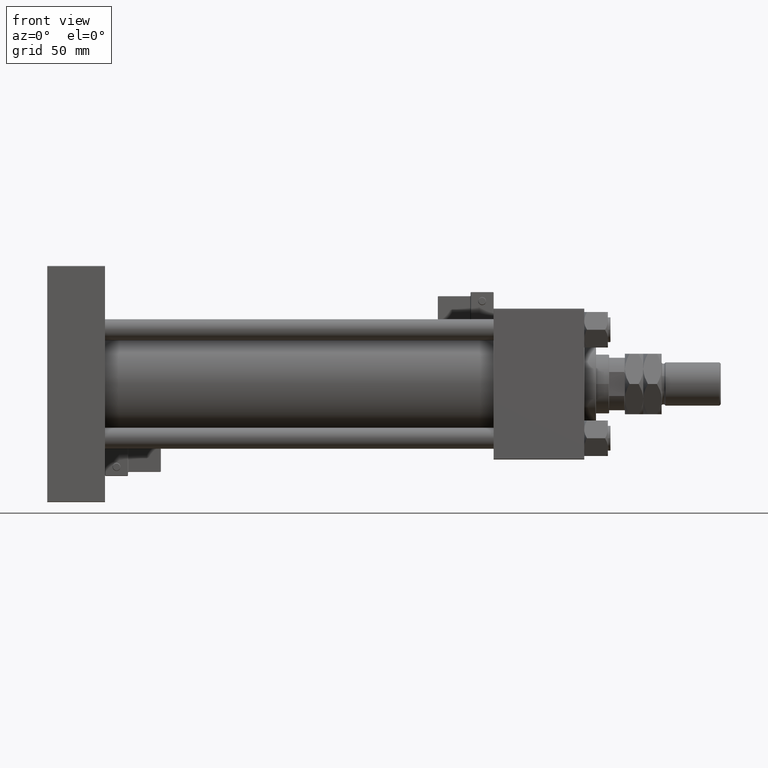
[diagram: clean part render]
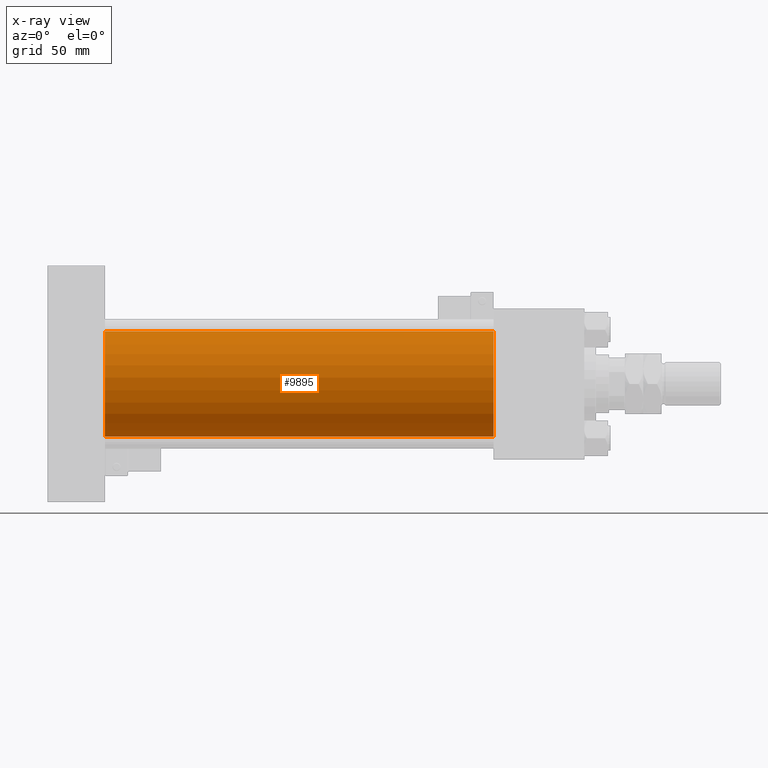
[diagram: x-ray — body ghosted, one internal face saturated and labeled with its STEP entity id]
A machine part, front view, then the same camera in x-ray: the body is ghosted and one INTERNAL B-rep face — a face not visible from any outside direction — is saturated and labeled: STEP entity #9895.
In plain terms, the highlighted cylindrical surface (partial cylindrical patch) has radius 40 mm, axis along (-1, -0, -0).
Its self-contained STEP definition (entity closure, byte-faithful):
#757 = CARTESIAN_POINT ( 'NONE',  ( 339.9999999999999432, -2.602085213965210642E-15, 0.000000000000000000 ) ) ;
#4086 = VERTEX_POINT ( 'NONE', #41383 ) ;
#4304 = DIRECTION ( 'NONE',  ( -1.000000000000000000, -0.000000000000000000, -0.000000000000000000 ) ) ;
#4971 = DIRECTION ( 'NONE',  ( 1.000000000000000000, 0.000000000000000000, 0.000000000000000000 ) ) ;
#5971 = DIRECTION ( 'NONE',  ( 0.000000000000000000, 0.000000000000000000, 1.000000000000000000 ) ) ;
#6613 = EDGE_LOOP ( 'NONE', ( #45920, #20708, #29845, #54898 ) ) ;
#9226 = AXIS2_PLACEMENT_3D ( 'NONE', #43740, #4971, #44307 ) ;
#9422 = LINE ( 'NONE', #26815, #50400 ) ;
#9607 = DIRECTION ( 'NONE',  ( 1.000000000000000000, 0.000000000000000000, 0.000000000000000000 ) ) ;
#9895 = ADVANCED_FACE ( 'NONE', ( #15389 ), #10240, .F. ) ;
#10240 = CYLINDRICAL_SURFACE ( 'NONE', #46111, 40.00000000000000000 ) ;
#15389 = FACE_OUTER_BOUND ( 'NONE', #6613, .T. ) ;
#16740 = VERTEX_POINT ( 'NONE', #22996 ) ;
#17141 = EDGE_CURVE ( 'NONE', #36138, #4086, #52932, .T. ) ;
#20708 = ORIENTED_EDGE ( 'NONE', *, *, #40480, .T. ) ;
#21512 = EDGE_CURVE ( 'NONE', #34084, #36138, #9422, .T. ) ;
#22996 = CARTESIAN_POINT ( 'NONE',  ( 339.9999999999999432, 2.296501982624201990E-15, -40.00000000000000000 ) ) ;
#25948 = CIRCLE ( 'NONE', #35960, 40.00000000000000000 ) ;
#26815 = CARTESIAN_POINT ( 'NONE',  ( 339.9999999999999432, -2.602085213965210642E-15, 40.00000000000000000 ) ) ;
#27289 = EDGE_CURVE ( 'NONE', #34084, #16740, #25948, .T. ) ;
#27634 = CARTESIAN_POINT ( 'NONE',  ( 339.9999999999999432, -2.602085213965210642E-15, 0.000000000000000000 ) ) ;
#29845 = ORIENTED_EDGE ( 'NONE', *, *, #17141, .F. ) ;
#31233 = DIRECTION ( 'NONE',  ( -1.000000000000000000, -0.000000000000000000, -0.000000000000000000 ) ) ;
#34084 = VERTEX_POINT ( 'NONE', #50932 ) ;
#35508 = LINE ( 'NONE', #44049, #38431 ) ;
#35960 = AXIS2_PLACEMENT_3D ( 'NONE', #757, #9607, #53491 ) ;
#36138 = VERTEX_POINT ( 'NONE', #49249 ) ;
#38431 = VECTOR ( 'NONE', #31233, 1000.000000000000000 ) ;
#40480 = EDGE_CURVE ( 'NONE', #16740, #4086, #35508, .T. ) ;
#41383 = CARTESIAN_POINT ( 'NONE',  ( 44.00000000000000000, 2.296501982624201990E-15, -40.00000000000000000 ) ) ;
#43740 = CARTESIAN_POINT ( 'NONE',  ( 44.00000000000000000, -2.602085213965210642E-15, 0.000000000000000000 ) ) ;
#44049 = CARTESIAN_POINT ( 'NONE',  ( 339.9999999999999432, 2.296501982624201990E-15, -40.00000000000000000 ) ) ;
#44307 = DIRECTION ( 'NONE',  ( 0.000000000000000000, 0.000000000000000000, -1.000000000000000000 ) ) ;
#45015 = DIRECTION ( 'NONE',  ( -1.000000000000000000, -0.000000000000000000, -0.000000000000000000 ) ) ;
#45920 = ORIENTED_EDGE ( 'NONE', *, *, #27289, .T. ) ;
#46111 = AXIS2_PLACEMENT_3D ( 'NONE', #27634, #45015, #5971 ) ;
#49249 = CARTESIAN_POINT ( 'NONE',  ( 44.00000000000000000, -2.602085213965210642E-15, 40.00000000000000000 ) ) ;
#50400 = VECTOR ( 'NONE', #4304, 1000.000000000000000 ) ;
#50932 = CARTESIAN_POINT ( 'NONE',  ( 339.9999999999999432, -2.602085213965210642E-15, 40.00000000000000000 ) ) ;
#52932 = CIRCLE ( 'NONE', #9226, 40.00000000000000000 ) ;
#53491 = DIRECTION ( 'NONE',  ( 0.000000000000000000, 0.000000000000000000, -1.000000000000000000 ) ) ;
#54898 = ORIENTED_EDGE ( 'NONE', *, *, #21512, .F. ) ;